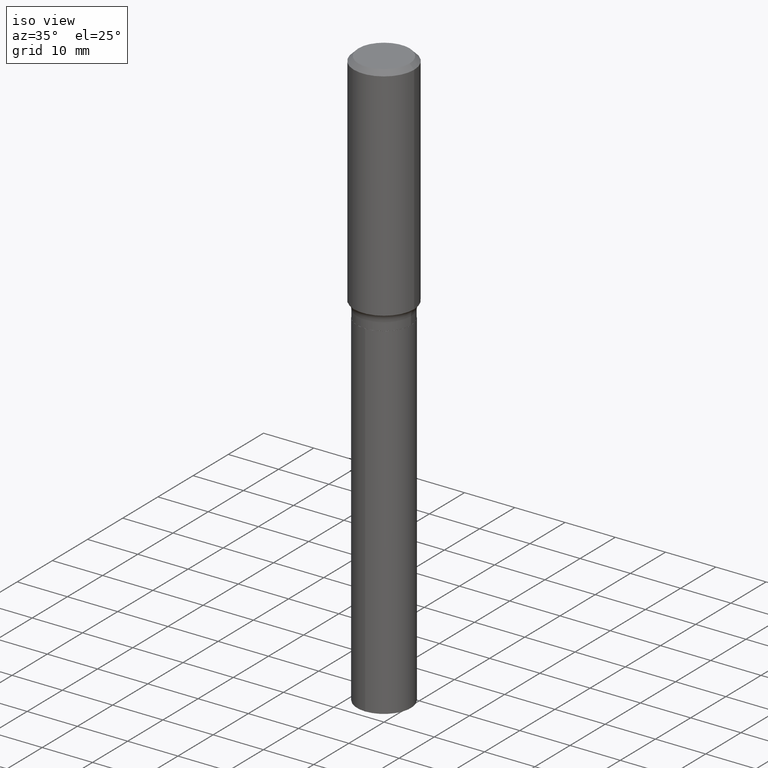
[diagram: clean part render]
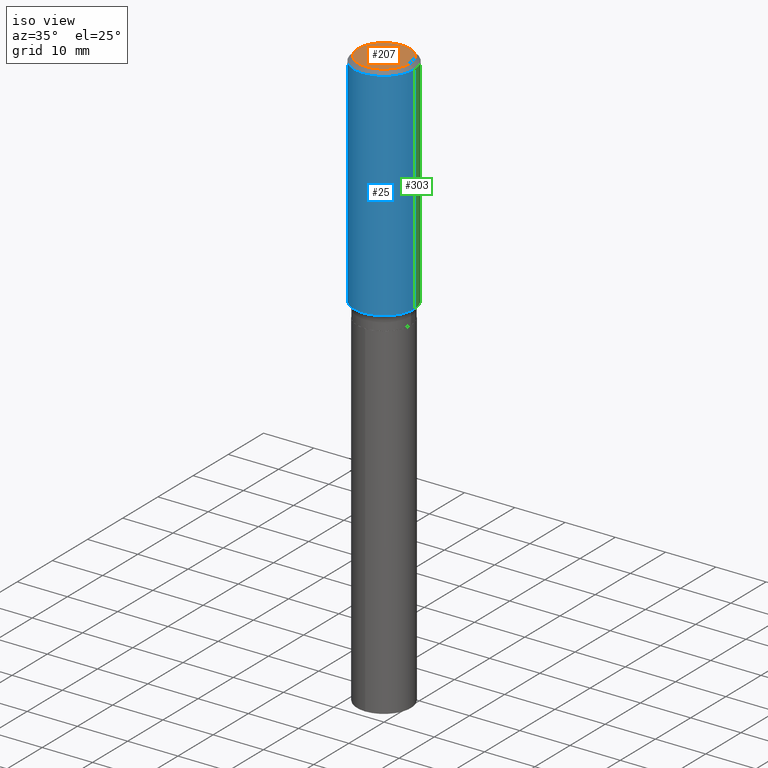
[diagram: same view with three faces highlighted in distinct colors, each labeled with its STEP entity id]
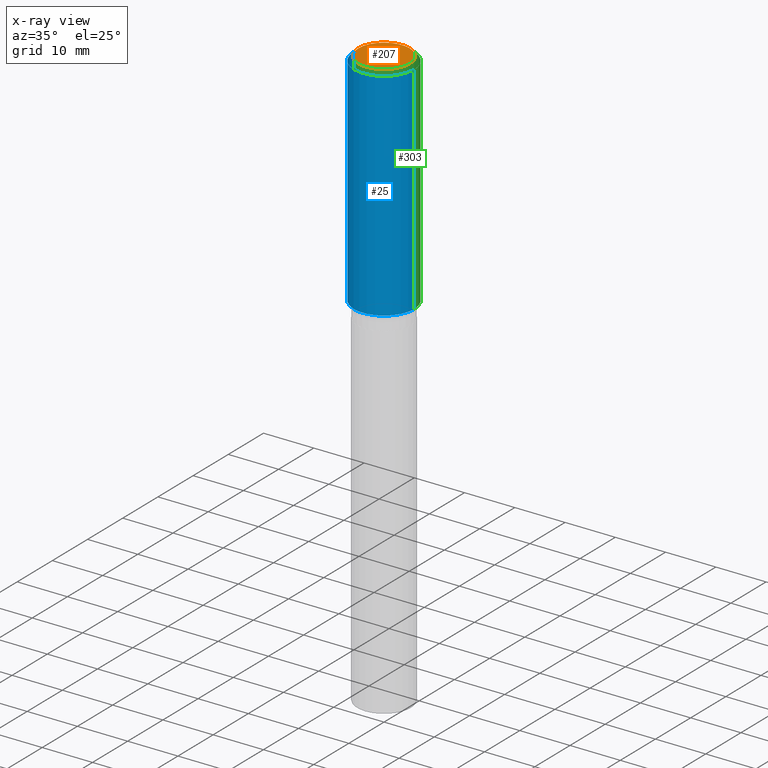
[diagram: x-ray of the same camera — body ghosted, the three highlighted faces saturated]
A machine part, iso view with three faces highlighted in distinct colors.
The next image is the same camera in x-ray (body ghosted, the three faces saturated) — at least one of them is partly hidden behind the body in this view.
Their STEP definitions:

[orange] entity #207 — the highlighted planar face has unit normal (0, -0, -1).
#7 = PLANE ( 'NONE',  #279 ) ;
#33 = ORIENTED_EDGE ( 'NONE', *, *, #83, .T. ) ;
#47 = DIRECTION ( 'NONE',  ( -1.000000000000000000, 6.982962677686265922E-15, -4.876176775795935793E-29 ) ) ;
#83 = EDGE_CURVE ( 'NONE', #228, #416, #269, .T. ) ;
#144 = DIRECTION ( 'NONE',  ( 1.000000000000000000, -6.982962677686266711E-15, 4.876140833081945105E-29 ) ) ;
#153 = DIRECTION ( 'NONE',  ( 1.000000000000000000, -6.982962677686266711E-15, 4.876140833081945105E-29 ) ) ;
#164 = EDGE_LOOP ( 'NONE', ( #224, #33 ) ) ;
#175 = CARTESIAN_POINT ( 'NONE',  ( 0.2007700000000000040, -1.560767496960719672E-15, 4.096137381458473721E-18 ) ) ;
#181 = CARTESIAN_POINT ( 'NONE',  ( -0.2007700000000000040, 1.463821008716677338E-15, 4.096137381438094301E-18 ) ) ;
#207 = ADVANCED_FACE ( 'NONE', ( #351 ), #7, .F. ) ;
#224 = ORIENTED_EDGE ( 'NONE', *, *, #322, .T. ) ;
#228 = VERTEX_POINT ( 'NONE', #175 ) ;
#252 = CARTESIAN_POINT ( 'NONE',  ( -1.001697619218023151E-46, 1.430158722866391908E-32, 4.096137381448114529E-18 ) ) ;
#254 = CIRCLE ( 'NONE', #280, 0.2007700000000000040 ) ;
#269 = CIRCLE ( 'NONE', #363, 0.2007700000000000040 ) ;
#273 = CARTESIAN_POINT ( 'NONE',  ( -5.008488096090115757E-47, 7.150793614331959538E-33, 2.048068690724057264E-18 ) ) ;
#279 = AXIS2_PLACEMENT_3D ( 'NONE', #273, #415, #47 ) ;
#280 = AXIS2_PLACEMENT_3D ( 'NONE', #334, #411, #153 ) ;
#322 = EDGE_CURVE ( 'NONE', #416, #228, #254, .T. ) ;
#334 = CARTESIAN_POINT ( 'NONE',  ( -1.001697619218023151E-46, 1.430158722866391908E-32, 4.096137381448114529E-18 ) ) ;
#351 = FACE_OUTER_BOUND ( 'NONE', #164, .T. ) ;
#363 = AXIS2_PLACEMENT_3D ( 'NONE', #252, #475, #144 ) ;
#411 = DIRECTION ( 'NONE',  ( -2.445468806185136597E-29, 3.491481338843145583E-15, 1.000000000000000000 ) ) ;
#415 = DIRECTION ( 'NONE',  ( 2.438088387897960049E-29, -3.491481338843145188E-15, -1.000000000000000000 ) ) ;
#416 = VERTEX_POINT ( 'NONE', #181 ) ;
#475 = DIRECTION ( 'NONE',  ( -2.445468806185136597E-29, 3.491481338843145583E-15, 1.000000000000000000 ) ) ;

[blue] entity #25 — the highlighted cylindrical surface (partial cylindrical patch) has radius 5.9995 mm, axis along (-0, 0, 1).
#3 = ORIENTED_EDGE ( 'NONE', *, *, #29, .F. ) ;
#4 = AXIS2_PLACEMENT_3D ( 'NONE', #131, #52, #65 ) ;
#15 = LINE ( 'NONE', #86, #317 ) ;
#16 = EDGE_CURVE ( 'NONE', #117, #69, #15, .T. ) ;
#20 = AXIS2_PLACEMENT_3D ( 'NONE', #381, #199, #423 ) ;
#25 = ADVANCED_FACE ( 'NONE', ( #282 ), #348, .T. ) ;
#29 = EDGE_CURVE ( 'NONE', #452, #69, #465, .T. ) ;
#52 = DIRECTION ( 'NONE',  ( -2.445468806185136597E-29, 3.491481338843145583E-15, 1.000000000000000000 ) ) ;
#65 = DIRECTION ( 'NONE',  ( 1.000000000000000000, -6.982962677686266711E-15, 0.000000000000000000 ) ) ;
#69 = VERTEX_POINT ( 'NONE', #250 ) ;
#79 = ORIENTED_EDGE ( 'NONE', *, *, #166, .T. ) ;
#86 = CARTESIAN_POINT ( 'NONE',  ( 0.2362000000000001043, -1.649375784469496920E-15, 1.151752954443000508E-29 ) ) ;
#89 = CARTESIAN_POINT ( 'NONE',  ( 4.230093396286823471E-29, -6.039452278983984562E-15, -1.729767881556277809 ) ) ;
#107 = CARTESIAN_POINT ( 'NONE',  ( -0.2362000000000002153, -4.361150337118626591E-15, -1.729767881556277809 ) ) ;
#117 = VERTEX_POINT ( 'NONE', #141 ) ;
#131 = CARTESIAN_POINT ( 'NONE',  ( 8.664295980313993487E-31, -1.237031838352134079E-16, -0.03543000000000021826 ) ) ;
#141 = CARTESIAN_POINT ( 'NONE',  ( 0.2362000000000002153, -7.688828063453482665E-15, -1.729767881556277809 ) ) ;
#166 = EDGE_CURVE ( 'NONE', #476, #117, #490, .T. ) ;
#171 = EDGE_CURVE ( 'NONE', #476, #452, #247, .T. ) ;
#195 = DIRECTION ( 'NONE',  ( -2.445468806185136877E-29, 3.491481338843145188E-15, 1.000000000000000000 ) ) ;
#199 = DIRECTION ( 'NONE',  ( -2.445468806185136597E-29, 3.491481338843145583E-15, 1.000000000000000000 ) ) ;
#219 = ORIENTED_EDGE ( 'NONE', *, *, #16, .T. ) ;
#241 = DIRECTION ( 'NONE',  ( -2.445468806185136877E-29, 3.491481338843145188E-15, 1.000000000000000000 ) ) ;
#242 = VECTOR ( 'NONE', #195, 39.37007874015748143 ) ;
#247 = LINE ( 'NONE', #382, #242 ) ;
#250 = CARTESIAN_POINT ( 'NONE',  ( 0.2361999999999999933, -1.773078968304709514E-15, -0.03543000000000021826 ) ) ;
#278 = ORIENTED_EDGE ( 'NONE', *, *, #171, .F. ) ;
#282 = FACE_OUTER_BOUND ( 'NONE', #375, .T. ) ;
#313 = DIRECTION ( 'NONE',  ( 1.000000000000000000, -6.982962677686266711E-15, 0.000000000000000000 ) ) ;
#317 = VECTOR ( 'NONE', #241, 39.37007874015748143 ) ;
#335 = CARTESIAN_POINT ( 'NONE',  ( -0.2361999999999999933, -1.403275789544241100E-15, -0.03543000000000021826 ) ) ;
#347 = DIRECTION ( 'NONE',  ( -2.445468806185136597E-29, 3.491481338843145583E-15, 1.000000000000000000 ) ) ;
#348 = CYLINDRICAL_SURFACE ( 'NONE', #20, 0.2362000000000001043 ) ;
#375 = EDGE_LOOP ( 'NONE', ( #278, #79, #219, #3 ) ) ;
#381 = CARTESIAN_POINT ( 'NONE',  ( 0.000000000000000000, 0.000000000000000000, 0.000000000000000000 ) ) ;
#382 = CARTESIAN_POINT ( 'NONE',  ( -0.2362000000000001043, 1.678301941865357380E-15, -1.161852468318209317E-29 ) ) ;
#423 = DIRECTION ( 'NONE',  ( 1.000000000000000000, -6.982962677686266711E-15, 4.876176775795935793E-29 ) ) ;
#448 = AXIS2_PLACEMENT_3D ( 'NONE', #89, #347, #313 ) ;
#452 = VERTEX_POINT ( 'NONE', #335 ) ;
#465 = CIRCLE ( 'NONE', #4, 0.2361999999999999933 ) ;
#476 = VERTEX_POINT ( 'NONE', #107 ) ;
#490 = CIRCLE ( 'NONE', #448, 0.2362000000000002153 ) ;

[green] entity #303 — the highlighted cylindrical surface (partial cylindrical patch) has radius 5.9995 mm, axis along (-0, 0, 1).
#15 = LINE ( 'NONE', #86, #317 ) ;
#16 = EDGE_CURVE ( 'NONE', #117, #69, #15, .T. ) ;
#31 = AXIS2_PLACEMENT_3D ( 'NONE', #483, #110, #260 ) ;
#69 = VERTEX_POINT ( 'NONE', #250 ) ;
#81 = ORIENTED_EDGE ( 'NONE', *, *, #16, .F. ) ;
#82 = CARTESIAN_POINT ( 'NONE',  ( 0.000000000000000000, 0.000000000000000000, 0.000000000000000000 ) ) ;
#86 = CARTESIAN_POINT ( 'NONE',  ( 0.2362000000000001043, -1.649375784469496920E-15, 1.151752954443000508E-29 ) ) ;
#97 = CARTESIAN_POINT ( 'NONE',  ( 4.230093396286823471E-29, -6.039452278983984562E-15, -1.729767881556277809 ) ) ;
#107 = CARTESIAN_POINT ( 'NONE',  ( -0.2362000000000002153, -4.361150337118626591E-15, -1.729767881556277809 ) ) ;
#110 = DIRECTION ( 'NONE',  ( -2.445468806185136597E-29, 3.491481338843145583E-15, 1.000000000000000000 ) ) ;
#117 = VERTEX_POINT ( 'NONE', #141 ) ;
#141 = CARTESIAN_POINT ( 'NONE',  ( 0.2362000000000002153, -7.688828063453482665E-15, -1.729767881556277809 ) ) ;
#171 = EDGE_CURVE ( 'NONE', #476, #452, #247, .T. ) ;
#176 = EDGE_CURVE ( 'NONE', #117, #476, #218, .T. ) ;
#183 = ORIENTED_EDGE ( 'NONE', *, *, #294, .F. ) ;
#193 = DIRECTION ( 'NONE',  ( 1.000000000000000000, -6.982962677686266711E-15, 4.876176775795935793E-29 ) ) ;
#195 = DIRECTION ( 'NONE',  ( -2.445468806185136877E-29, 3.491481338843145188E-15, 1.000000000000000000 ) ) ;
#218 = CIRCLE ( 'NONE', #262, 0.2362000000000002153 ) ;
#226 = DIRECTION ( 'NONE',  ( -2.445468806185136597E-29, 3.491481338843145583E-15, 1.000000000000000000 ) ) ;
#241 = DIRECTION ( 'NONE',  ( -2.445468806185136877E-29, 3.491481338843145188E-15, 1.000000000000000000 ) ) ;
#242 = VECTOR ( 'NONE', #195, 39.37007874015748143 ) ;
#244 = ORIENTED_EDGE ( 'NONE', *, *, #176, .T. ) ;
#247 = LINE ( 'NONE', #382, #242 ) ;
#250 = CARTESIAN_POINT ( 'NONE',  ( 0.2361999999999999933, -1.773078968304709514E-15, -0.03543000000000021826 ) ) ;
#259 = ORIENTED_EDGE ( 'NONE', *, *, #171, .T. ) ;
#260 = DIRECTION ( 'NONE',  ( 1.000000000000000000, -6.982962677686266711E-15, 0.000000000000000000 ) ) ;
#262 = AXIS2_PLACEMENT_3D ( 'NONE', #97, #470, #316 ) ;
#294 = EDGE_CURVE ( 'NONE', #69, #452, #364, .T. ) ;
#303 = ADVANCED_FACE ( 'NONE', ( #399 ), #366, .T. ) ;
#316 = DIRECTION ( 'NONE',  ( 1.000000000000000000, -6.982962677686266711E-15, 0.000000000000000000 ) ) ;
#317 = VECTOR ( 'NONE', #241, 39.37007874015748143 ) ;
#335 = CARTESIAN_POINT ( 'NONE',  ( -0.2361999999999999933, -1.403275789544241100E-15, -0.03543000000000021826 ) ) ;
#364 = CIRCLE ( 'NONE', #31, 0.2361999999999999933 ) ;
#366 = CYLINDRICAL_SURFACE ( 'NONE', #491, 0.2362000000000001043 ) ;
#382 = CARTESIAN_POINT ( 'NONE',  ( -0.2362000000000001043, 1.678301941865357380E-15, -1.161852468318209317E-29 ) ) ;
#399 = FACE_OUTER_BOUND ( 'NONE', #404, .T. ) ;
#404 = EDGE_LOOP ( 'NONE', ( #244, #259, #183, #81 ) ) ;
#452 = VERTEX_POINT ( 'NONE', #335 ) ;
#470 = DIRECTION ( 'NONE',  ( -2.445468806185136597E-29, 3.491481338843145583E-15, 1.000000000000000000 ) ) ;
#476 = VERTEX_POINT ( 'NONE', #107 ) ;
#483 = CARTESIAN_POINT ( 'NONE',  ( 8.664295980313993487E-31, -1.237031838352134079E-16, -0.03543000000000021826 ) ) ;
#491 = AXIS2_PLACEMENT_3D ( 'NONE', #82, #226, #193 ) ;